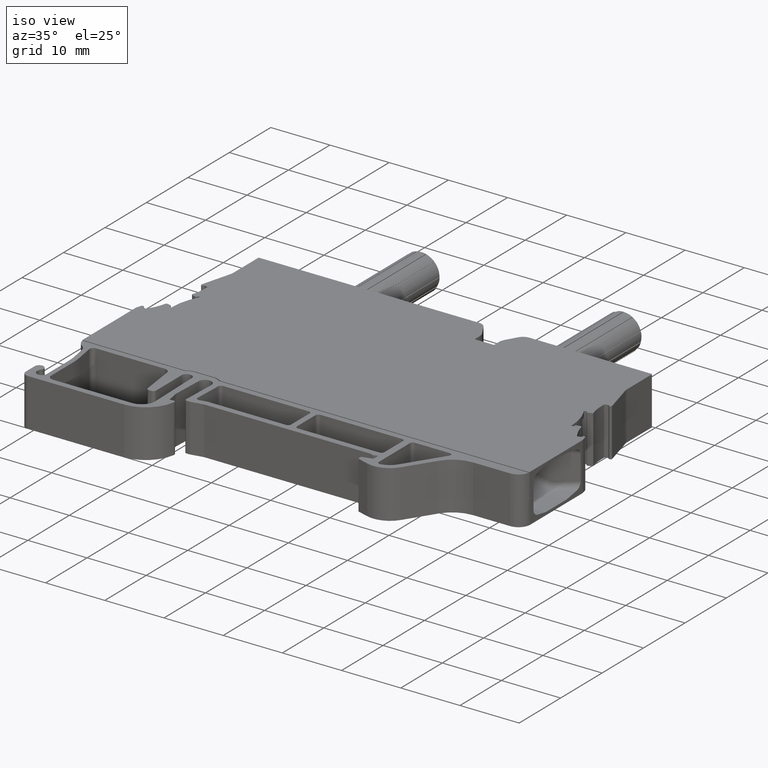
[diagram: clean part render]
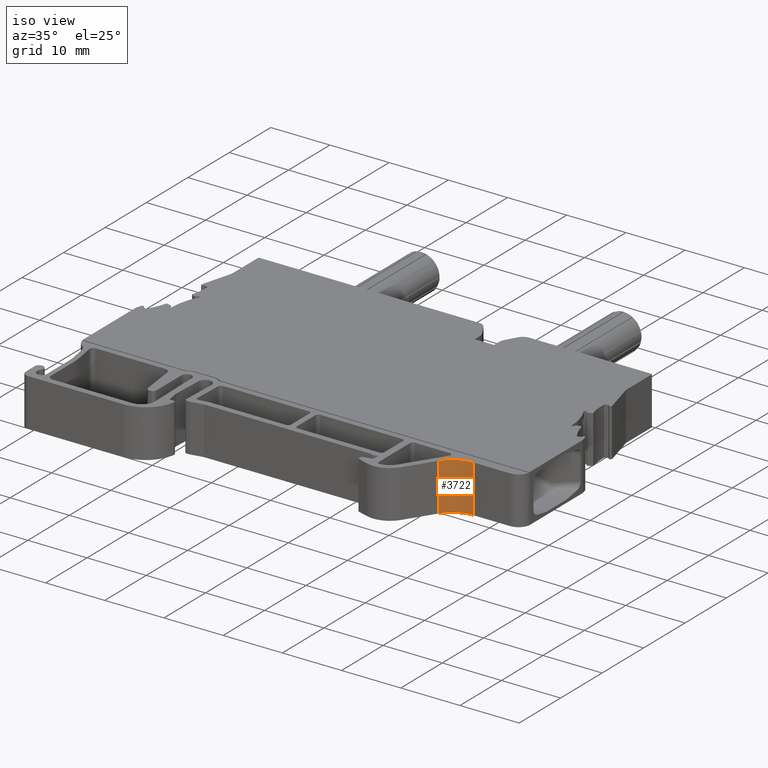
[diagram: same view with one face highlighted and labeled with its STEP entity id]
A machine part, iso view. The second image highlights one B-rep face of the part: STEP entity #3722.
In plain terms, the highlighted cylindrical surface (edge-blend (fillet) strip) has radius 5 mm, axis along (0, 0, 1).
Its self-contained STEP definition (entity closure, byte-faithful):
#1338 = VERTEX_POINT ( 'NONE', #24145 ) ;
#1395 = VERTEX_POINT ( 'NONE', #24211 ) ;
#1827 = EDGE_LOOP ( 'NONE', ( #26507, #26446, #26447, #26368 ) ) ;
#2534 = EDGE_CURVE ( 'NONE', #23726, #23730, #8015, .T. ) ;
#2615 = EDGE_CURVE ( 'NONE', #1338, #23730, #15952, .T. ) ;
#2617 = EDGE_CURVE ( 'NONE', #1395, #23726, #15897, .T. ) ;
#3722 = ADVANCED_FACE ( 'NONE', ( #9134 ), #9155, .F. ) ;
#7615 = VECTOR ( 'NONE', #15983, 1000.000000000000000 ) ;
#7621 = VECTOR ( 'NONE', #15971, 1000.000000000000000 ) ;
#7988 = AXIS2_PLACEMENT_3D ( 'NONE', #15688, #15702, #15712 ) ;
#8015 = CIRCLE ( 'NONE', #7988, 4.999999999999893400 ) ;
#9134 = FACE_OUTER_BOUND ( 'NONE', #1827, .T. ) ;
#9155 = CYLINDRICAL_SURFACE ( 'NONE', #17868, 4.999999999999893400 ) ;
#9157 = CARTESIAN_POINT ( 'NONE',  ( 1537.601468263970000, 994.4176806272769200, -77.36787831948760200 ) ) ;
#9159 = DIRECTION ( 'NONE',  ( 0.0000000000000000000, 0.0000000000000000000, 1.000000000000000000 ) ) ;
#9167 = DIRECTION ( 'NONE',  ( 1.000000000000000000, 0.0000000000000000000, 0.0000000000000000000 ) ) ;
#10920 = CARTESIAN_POINT ( 'NONE',  ( 1533.401838454085000, 997.1311856410789000, 8.050000000000000700 ) ) ;
#10934 = CARTESIAN_POINT ( 'NONE',  ( 1537.601469148024800, 999.4176806272770400, 8.050000000000000700 ) ) ;
#12786 = EDGE_CURVE ( 'NONE', #1395, #1338, #19112, .T. ) ;
#15688 = CARTESIAN_POINT ( 'NONE',  ( 1537.601468263970000, 994.4176806272769200, 8.050000000000000700 ) ) ;
#15702 = DIRECTION ( 'NONE',  ( 0.0000000000000000000, 0.0000000000000000000, 1.000000000000000000 ) ) ;
#15712 = DIRECTION ( 'NONE',  ( 1.000000000000000000, 0.0000000000000000000, 0.0000000000000000000 ) ) ;
#15897 = LINE ( 'NONE', #15963, #7621 ) ;
#15952 = LINE ( 'NONE', #15962, #7615 ) ;
#15962 = CARTESIAN_POINT ( 'NONE',  ( 1533.401838454085000, 997.1311856410789000, -77.36787831948760200 ) ) ;
#15963 = CARTESIAN_POINT ( 'NONE',  ( 1537.601469148024800, 999.4176806272770400, -77.36787831948760200 ) ) ;
#15971 = DIRECTION ( 'NONE',  ( 0.0000000000000000000, 0.0000000000000000000, 1.000000000000000000 ) ) ;
#15983 = DIRECTION ( 'NONE',  ( 0.0000000000000000000, 0.0000000000000000000, 1.000000000000000000 ) ) ;
#17868 = AXIS2_PLACEMENT_3D ( 'NONE', #9157, #9159, #9167 ) ;
#19097 = AXIS2_PLACEMENT_3D ( 'NONE', #23020, #23021, #23036 ) ;
#19112 = CIRCLE ( 'NONE', #19097, 4.999999999999893400 ) ;
#23020 = CARTESIAN_POINT ( 'NONE',  ( 1537.601468263970000, 994.4176806272769200, 0.0000000000000000000 ) ) ;
#23021 = DIRECTION ( 'NONE',  ( -0.0000000000000000000, -0.0000000000000000000, 1.000000000000000000 ) ) ;
#23036 = DIRECTION ( 'NONE',  ( -1.000000000000000000, 2.220446049250360400E-014, 0.0000000000000000000 ) ) ;
#23726 = VERTEX_POINT ( 'NONE', #10934 ) ;
#23730 = VERTEX_POINT ( 'NONE', #10920 ) ;
#24145 = CARTESIAN_POINT ( 'NONE',  ( 1533.401838454085000, 997.1311856410789000, 0.0000000000000000000 ) ) ;
#24211 = CARTESIAN_POINT ( 'NONE',  ( 1537.601469148024800, 999.4176806272770400, 0.0000000000000000000 ) ) ;
#26368 = ORIENTED_EDGE ( 'NONE', *, *, #2615, .F. ) ;
#26446 = ORIENTED_EDGE ( 'NONE', *, *, #2617, .T. ) ;
#26447 = ORIENTED_EDGE ( 'NONE', *, *, #2534, .T. ) ;
#26507 = ORIENTED_EDGE ( 'NONE', *, *, #12786, .F. ) ;